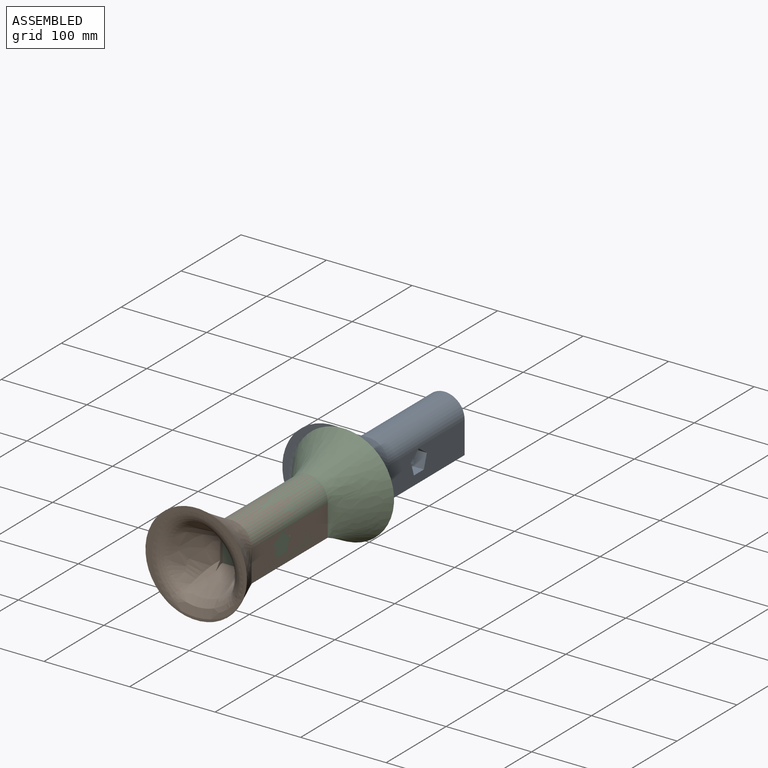
[diagram: assembled view]
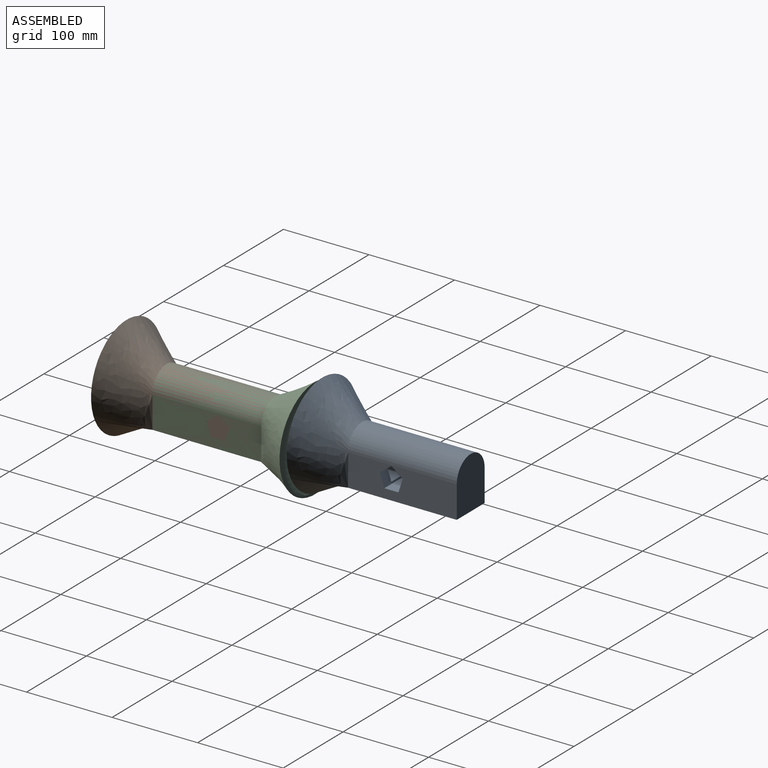
[diagram: assembled view, second angle]
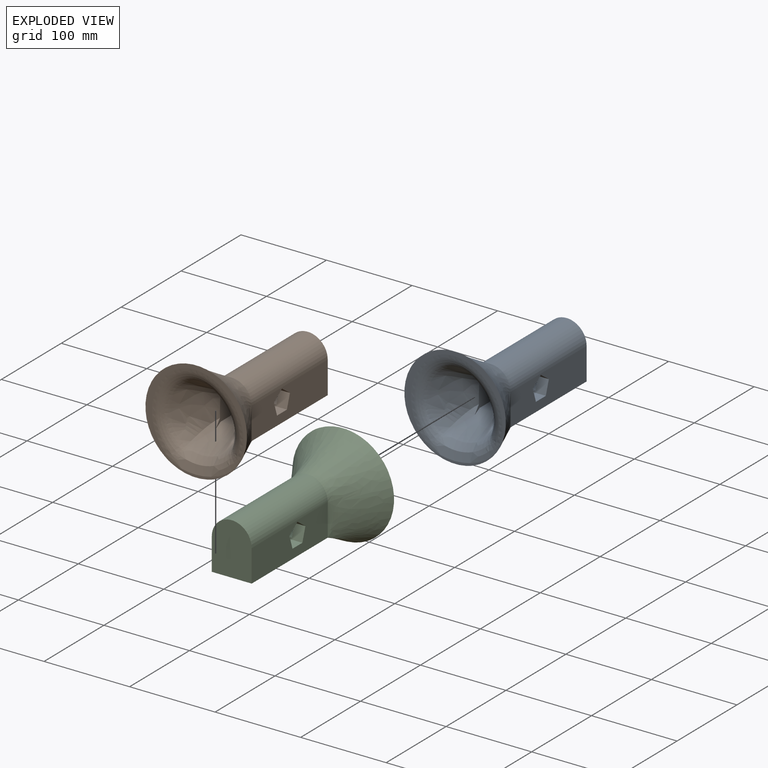
[diagram: exploded view]
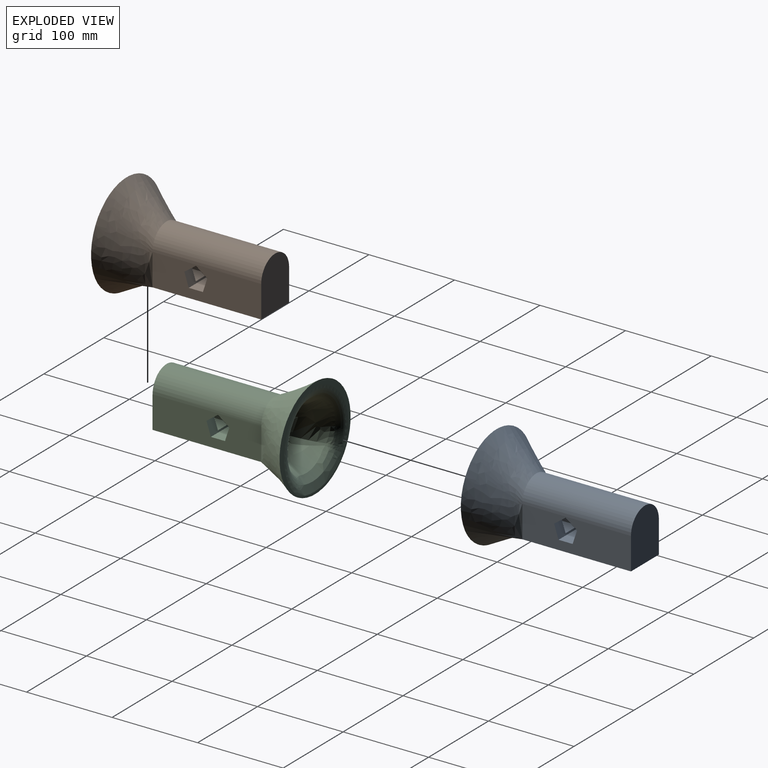
[diagram: exploded view, second angle]
ASSEMBLY  parts=3 mates=5
PART A: 29 faces, bbox 144.4x205.7x144.3 mm
  f0: plane 45.72x22.08mm, normal (0,0,1), area 943.4mm2, adj f9,f11,f14,f16
  f1: plane 128.96x39.43mm, normal (-1,0,0), area 4289.6mm2, adj f2,f4,f5,f8,f16,f17,f18,f19
  f2: plane 127x46.62mm, normal (0,0,-1), area 5921.2mm2, adj f1,f3,f5,f7
  f3: plane 128.96x39.43mm, normal (1,0,0), area 4289.6mm2, adj f2,f4,f5,f8,f16,f17,f20,f21
  f4: cylinder r=23.31mm len=127mm, axis (0,1,0), area 9301mm2, adj f1,f3,f5,f8
  f5: plane 60.79x46.62mm, normal (0,1,0), area 2600.8mm2, adj f1,f2,f3,f4
  f6: plane 123.14x123.14mm, normal (0,-1,0), area 1650.4mm2, adj f7,f8,f25,f26,f27,f28
  f7: bspline ~80.44x53.63mm, area 3833.6mm2, adj f2,f6,f8
  f8: bspline ~119.01x111.67mm, area 12725.5mm2, adj f1,f3,f4,f6,f7
  f9: plane 125.78x29.21mm, normal (1,0,0), area 2520.3mm2, adj f0,f10,f12,f13,f14,f15,f16,f17
  f10: plane 54.84x21.22mm, normal (0,0,1), area 1163.8mm2, adj f9,f11,f13,f17
  f11: plane 127.17x29.2mm, normal (-1,0,0), area 2465mm2, adj f0,f10,f12,f13,f14,f15,f16,f17
  f12: cylinder r=10.61mm len=118.2mm, axis (0,1,0), area 3873.6mm2, adj f9,f11,f13,f15
  f13: plane 35.39x21.22mm, normal (0,-1,0), area 702.7mm2, adj f9,f10,f11,f12
  f14: offset ~105.84x79.03mm, area 1365mm2, adj f0,f9,f11,f23,f24,f27
  f15: offset ~144.41x137.07mm, area 5941.7mm2, adj f9,f11,f12,f23,f24,f26,f28
  f16: plane 46.62x15.71mm, normal (0,0.95,0.31), area 462.3mm2, adj f0,f1,f3,f9,f11,f19,f20,f22
  f17: plane 46.62x15.71mm, normal (0,-0.95,0.31), area 462.3mm2, adj f1,f3,f9,f10,f11,f18,f20,f21
  f18: plane 13.37x12.7mm, normal (0,-0.59,-0.81), area 209.8mm2, adj f1,f9,f17,f19
  f19: plane 13.37x12.7mm, normal (0,0.59,-0.81), area 209.8mm2, adj f1,f9,f16,f18
  f20: plane 46.62x16.52mm, normal (0,0,1), area 770.3mm2, adj f1,f3,f16,f17
  f21: plane 13.37x12.7mm, normal (0,-0.59,-0.81), area 209.8mm2, adj f3,f11,f17,f22
  f22: plane 13.37x12.7mm, normal (0,0.59,-0.81), area 209.8mm2, adj f3,f11,f16,f21
  f23: bspline ~50.89x27.06mm, area 185.6mm2, adj f9,f14,f15,f25,f26,f27
  f24: bspline ~43.4x27.94mm, area 190.9mm2, adj f11,f14,f15,f27,f28
  f25: bspline ~17.76x13.84mm, area 69.5mm2, adj f6,f23,f26,f27
  f26: bspline ~107.34x104.11mm, area 3979.5mm2, adj f6,f15,f23,f25,f28
  f27: bspline ~74.6x33.96mm, area 1431.3mm2, adj f6,f14,f23,f24,f25,f28
  f28: bspline ~18.76x15.41mm, area 93.4mm2, adj f6,f15,f24,f26,f27
PART B: same geometry as A
PART C: same geometry as A
PLACE A t=(56.5,91.52,7.52)mm fixed
PLACE B t=(56.5,-137.08,7.52)mm
PLACE C rot(axis=(0,0,1),180deg) t=(103.12,-137.08,7.52)mm
MATE planar C.f6 <-> A.f6  axis (0,1,0) through (28.86,-22.78,56.81)mm
MATE planar C.f1 <-> A.f3  axis (1,0,0) through (103.12,-138.5,25.88)mm
MATE parallel A.f2 <-> C.f2  axis (0,0,-1) through (79.81,91.52,7.52)mm
MATE planar C.f2 <-> A.f2  axis (0,0,-1) through (79.81,-137.08,7.52)mm
MATE fastened B.f2 <-> C.f2  axis (0,0,-1) through (79.81,-137.08,7.52)mm
